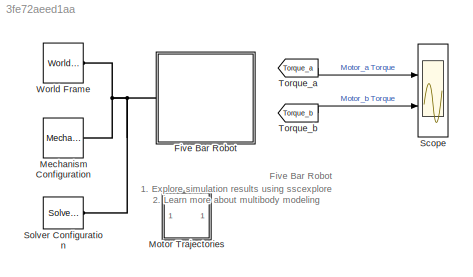
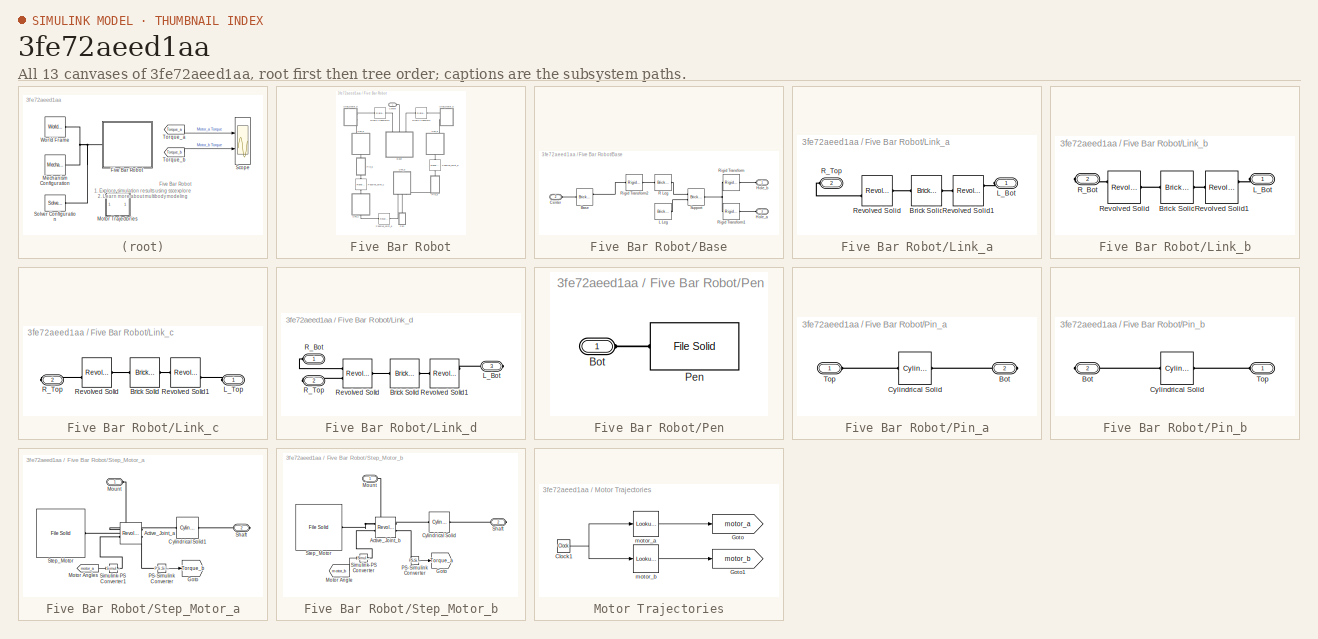
[diagram: thumbnail index - all 13 canvases of the model, root first then tree order]
MODEL slx_3fe72aeed1aa
KIND model
CONFIG AbsTol = 1e-3
CONFIG EnableMultiTasking = on
CONFIG FixedStep = auto
CONFIG MaxStep = auto
CONFIG MinStep = auto
CONFIG RelTol = 1e-3
CONFIG SampleTimeConstraint = Unconstrained
CONFIG SolverName = VariableStepAuto
CONFIG StartTime = 0.0
CONFIG StopTime = 2
WORKSPACE source: external: MATLAB File  (data not in archive)
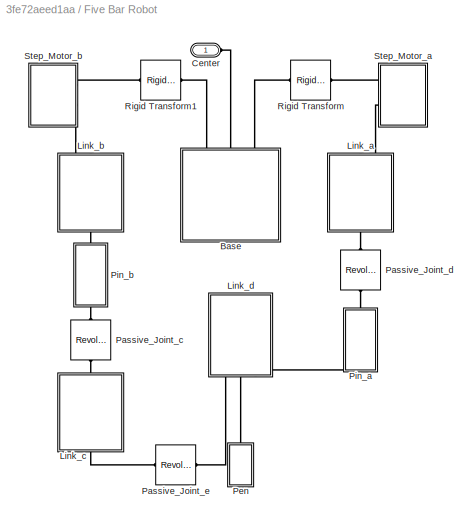
BLOCK [SubSystem] Five Bar Robot
  Ports = [0, 0, 0, 0, 0, 1]
  RequestExecContextInheritance = off
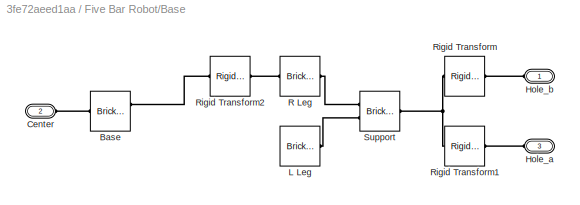
BLOCK [SubSystem] Five Bar Robot/Base
  NameLocation = right
  Ports = [0, 0, 0, 0, 0, 3]
  RequestExecContextInheritance = off
BLOCK [Reference] Five Bar Robot/Base/Base  REF=sm_lib/Body Elements/Brick Solid
  Ports = [0, 0, 0, 0, 0, 2, 1]
  SourceBlock = sm_lib/Body Elements/Brick Solid
  SourceProductBaseCode = MS
  SourceType = Brick Solid
BLOCK [PMIOPort] Five Bar Robot/Base/Center
  Port = 2
  Side = Left
BLOCK [PMIOPort] Five Bar Robot/Base/Hole_a
  Port = 3
  Side = Left
BLOCK [PMIOPort] Five Bar Robot/Base/Hole_b
  Side = Left
BLOCK [Reference] Five Bar Robot/Base/L Leg  REF=sm_lib/Body Elements/Brick Solid
  Ports = [0, 0, 0, 0, 0, 1, 1]
  SourceBlock = sm_lib/Body Elements/Brick Solid
  SourceProductBaseCode = MS
  SourceType = Brick Solid
BLOCK [Reference] Five Bar Robot/Base/R Leg  REF=sm_lib/Body Elements/Brick Solid
  Ports = [0, 0, 0, 0, 0, 1, 1]
  SourceBlock = sm_lib/Body Elements/Brick Solid
  SourceProductBaseCode = MS
  SourceType = Brick Solid
BLOCK [Reference] Five Bar Robot/Base/Rigid Transform  REF=sm_lib/Frames and
Transforms/Rigid
Transform
  Ports = [0, 0, 0, 0, 0, 1, 1]
  SourceBlock = sm_lib/Frames and\nTransforms/Rigid\nTransform
  SourceProductBaseCode = MS
  SourceType = Rigid\nTransform
BLOCK [Reference] Five Bar Robot/Base/Rigid Transform1  REF=sm_lib/Frames and
Transforms/Rigid
Transform
  Ports = [0, 0, 0, 0, 0, 1, 1]
  SourceBlock = sm_lib/Frames and\nTransforms/Rigid\nTransform
  SourceProductBaseCode = MS
  SourceType = Rigid\nTransform
BLOCK [Reference] Five Bar Robot/Base/Rigid Transform2  REF=sm_lib/Frames and
Transforms/Rigid
Transform
  Ports = [0, 0, 0, 0, 0, 1, 1]
  SourceBlock = sm_lib/Frames and\nTransforms/Rigid\nTransform
  SourceProductBaseCode = MS
  SourceType = Rigid\nTransform
BLOCK [Reference] Five Bar Robot/Base/Support  REF=sm_lib/Body Elements/Brick Solid
  Ports = [0, 0, 0, 0, 0, 2, 1]
  SourceBlock = sm_lib/Body Elements/Brick Solid
  SourceProductBaseCode = MS
  SourceType = Brick Solid
BLOCK [PMIOPort] Five Bar Robot/Center
  Side = Left
BLOCK [SubSystem] Five Bar Robot/Link_a
  NameLocation = right
  Ports = [0, 0, 0, 0, 0, 1, 1]
  RequestExecContextInheritance = off
BLOCK [Reference] Five Bar Robot/Link_a/Brick Solid  REF=sm_lib/Body Elements/Brick Solid
  Ports = [0, 0, 0, 0, 0, 1, 1]
  SourceBlock = sm_lib/Body Elements/Brick Solid
  SourceProductBaseCode = MS
  SourceType = Brick Solid
BLOCK [PMIOPort] Five Bar Robot/Link_a/L_Bot
  Side = Left
BLOCK [PMIOPort] Five Bar Robot/Link_a/R_Top
  Port = 2
  Side = Right
BLOCK [Reference] Five Bar Robot/Link_a/Revolved Solid  REF=sm_lib/Body Elements/Revolved Solid
  Ports = [0, 0, 0, 0, 0, 2, 1]
  SourceBlock = sm_lib/Body Elements/Revolved Solid
  SourceProductBaseCode = MS
  SourceType = Revolved Solid
BLOCK [Reference] Five Bar Robot/Link_a/Revolved Solid1  REF=sm_lib/Body Elements/Revolved Solid
  Ports = [0, 0, 0, 0, 0, 2, 1]
  SourceBlock = sm_lib/Body Elements/Revolved Solid
  SourceProductBaseCode = MS
  SourceType = Revolved Solid
BLOCK [SubSystem] Five Bar Robot/Link_b
  NameLocation = right
  Ports = [0, 0, 0, 0, 0, 1, 1]
  RequestExecContextInheritance = off
BLOCK [Reference] Five Bar Robot/Link_b/Brick Solid  REF=sm_lib/Body Elements/Brick Solid
  Ports = [0, 0, 0, 0, 0, 1, 1]
  SourceBlock = sm_lib/Body Elements/Brick Solid
  SourceProductBaseCode = MS
  SourceType = Brick Solid
BLOCK [PMIOPort] Five Bar Robot/Link_b/L_Bot
  Side = Left
BLOCK [PMIOPort] Five Bar Robot/Link_b/R_Bot
  Port = 2
  Side = Right
BLOCK [Reference] Five Bar Robot/Link_b/Revolved Solid  REF=sm_lib/Body Elements/Revolved Solid
  Ports = [0, 0, 0, 0, 0, 2, 1]
  SourceBlock = sm_lib/Body Elements/Revolved Solid
  SourceProductBaseCode = MS
  SourceType = Revolved Solid
BLOCK [Reference] Five Bar Robot/Link_b/Revolved Solid1  REF=sm_lib/Body Elements/Revolved Solid
  Ports = [0, 0, 0, 0, 0, 2, 1]
  SourceBlock = sm_lib/Body Elements/Revolved Solid
  SourceProductBaseCode = MS
  SourceType = Revolved Solid
BLOCK [SubSystem] Five Bar Robot/Link_c
  NameLocation = right
  Ports = [0, 0, 0, 0, 0, 1, 1]
  RequestExecContextInheritance = off
BLOCK [Reference] Five Bar Robot/Link_c/Brick Solid  REF=sm_lib/Body Elements/Brick Solid
  Ports = [0, 0, 0, 0, 0, 1, 1]
  SourceBlock = sm_lib/Body Elements/Brick Solid
  SourceProductBaseCode = MS
  SourceType = Brick Solid
BLOCK [PMIOPort] Five Bar Robot/Link_c/L_Top
  Side = Left
BLOCK [PMIOPort] Five Bar Robot/Link_c/R_Top
  Port = 2
  Side = Right
BLOCK [Reference] Five Bar Robot/Link_c/Revolved Solid  REF=sm_lib/Body Elements/Revolved Solid
  Ports = [0, 0, 0, 0, 0, 2, 1]
  SourceBlock = sm_lib/Body Elements/Revolved Solid
  SourceProductBaseCode = MS
  SourceType = Revolved Solid
BLOCK [Reference] Five Bar Robot/Link_c/Revolved Solid1  REF=sm_lib/Body Elements/Revolved Solid
  Ports = [0, 0, 0, 0, 0, 2, 1]
  SourceBlock = sm_lib/Body Elements/Revolved Solid
  SourceProductBaseCode = MS
  SourceType = Revolved Solid
BLOCK [SubSystem] Five Bar Robot/Link_d
  NameLocation = right
  Ports = [0, 0, 0, 0, 0, 0, 3]
  RequestExecContextInheritance = off
BLOCK [Reference] Five Bar Robot/Link_d/Brick Solid  REF=sm_lib/Body Elements/Brick Solid
  Ports = [0, 0, 0, 0, 0, 1, 1]
  SourceBlock = sm_lib/Body Elements/Brick Solid
  SourceProductBaseCode = MS
  SourceType = Brick Solid
BLOCK [PMIOPort] Five Bar Robot/Link_d/L_Bot
  Port = 3
  Side = Right
BLOCK [PMIOPort] Five Bar Robot/Link_d/R_Bot
  Side = Right
BLOCK [PMIOPort] Five Bar Robot/Link_d/R_Top
  Port = 2
  Side = Right
BLOCK [Reference] Five Bar Robot/Link_d/Revolved Solid  REF=sm_lib/Body Elements/Revolved Solid
  Ports = [0, 0, 0, 0, 0, 2, 1]
  SourceBlock = sm_lib/Body Elements/Revolved Solid
  SourceProductBaseCode = MS
  SourceType = Revolved Solid
BLOCK [Reference] Five Bar Robot/Link_d/Revolved Solid1  REF=sm_lib/Body Elements/Revolved Solid
  Ports = [0, 0, 0, 0, 0, 2, 1]
  SourceBlock = sm_lib/Body Elements/Revolved Solid
  SourceProductBaseCode = MS
  SourceType = Revolved Solid
BLOCK [Reference] Five Bar Robot/Passive_Joint_c  REF=sm_lib/Joints/Revolute Joint
  NameLocation = right
  Ports = [0, 0, 0, 0, 0, 1, 1]
  SourceBlock = sm_lib/Joints/Revolute Joint
  SourceProductBaseCode = MS
  SourceType = Revolute Joint
BLOCK [Reference] Five Bar Robot/Passive_Joint_d  REF=sm_lib/Joints/Revolute Joint
  NameLocation = right
  Ports = [0, 0, 0, 0, 0, 1, 1]
  SourceBlock = sm_lib/Joints/Revolute Joint
  SourceProductBaseCode = MS
  SourceType = Revolute Joint
BLOCK [Reference] Five Bar Robot/Passive_Joint_e  REF=sm_lib/Joints/Revolute Joint
  Ports = [0, 0, 0, 0, 0, 1, 1]
  SourceBlock = sm_lib/Joints/Revolute Joint
  SourceProductBaseCode = MS
  SourceType = Revolute Joint
BLOCK [SubSystem] Five Bar Robot/Pen
  Ports = [0, 0, 0, 0, 0, 1]
  RequestExecContextInheritance = off
BLOCK [PMIOPort] Five Bar Robot/Pen/Bot
  Side = Left
BLOCK [Reference] Five Bar Robot/Pen/Pen  REF=sm_lib/Body Elements/File Solid
  Ports = [0, 0, 0, 0, 0, 1, 1]
  SourceBlock = sm_lib/Body Elements/File Solid
  SourceProductBaseCode = MS
  SourceType = File Solid
BLOCK [SubSystem] Five Bar Robot/Pin_a
  NameLocation = right
  Ports = [0, 0, 0, 0, 0, 1, 1]
  RequestExecContextInheritance = off
BLOCK [PMIOPort] Five Bar Robot/Pin_a/Bot
  NameLocation = top
  Port = 2
  Side = Right
BLOCK [Reference] Five Bar Robot/Pin_a/Cylindrical Solid  REF=sm_lib/Body Elements/Cylindrical Solid
  Ports = [0, 0, 0, 0, 0, 1, 1]
  SourceBlock = sm_lib/Body Elements/Cylindrical Solid
  SourceProductBaseCode = MS
  SourceType = Cylindrical Solid
BLOCK [PMIOPort] Five Bar Robot/Pin_a/Top
  NameLocation = top
  Side = Left
BLOCK [SubSystem] Five Bar Robot/Pin_b
  NameLocation = right
  Ports = [0, 0, 0, 0, 0, 1, 1]
  RequestExecContextInheritance = off
BLOCK [PMIOPort] Five Bar Robot/Pin_b/Bot
  NameLocation = top
  Port = 2
  Side = Right
BLOCK [Reference] Five Bar Robot/Pin_b/Cylindrical Solid  REF=sm_lib/Body Elements/Cylindrical Solid
  Ports = [0, 0, 0, 0, 0, 1, 1]
  SourceBlock = sm_lib/Body Elements/Cylindrical Solid
  SourceProductBaseCode = MS
  SourceType = Cylindrical Solid
BLOCK [PMIOPort] Five Bar Robot/Pin_b/Top
  NameLocation = top
  Side = Left
BLOCK [Reference] Five Bar Robot/Rigid Transform  REF=sm_lib/Frames and
Transforms/Rigid
Transform
  Ports = [0, 0, 0, 0, 0, 1, 1]
  SourceBlock = sm_lib/Frames and\nTransforms/Rigid\nTransform
  SourceProductBaseCode = MS
  SourceType = Rigid\nTransform
BLOCK [Reference] Five Bar Robot/Rigid Transform1  REF=sm_lib/Frames and
Transforms/Rigid
Transform
  Ports = [0, 0, 0, 0, 0, 1, 1]
  SourceBlock = sm_lib/Frames and\nTransforms/Rigid\nTransform
  SourceProductBaseCode = MS
  SourceType = Rigid\nTransform
BLOCK [SubSystem] Five Bar Robot/Step_Motor_a
  Ports = [0, 0, 0, 0, 0, 0, 2]
  RequestExecContextInheritance = off
BLOCK [Reference] Five Bar Robot/Step_Motor_a/Active_Joint_a  REF=sm_lib/Joints/Revolute Joint
  Ports = [0, 0, 0, 0, 0, 2, 2]
  SourceBlock = sm_lib/Joints/Revolute Joint
  SourceProductBaseCode = MS
  SourceType = Revolute Joint
BLOCK [Reference] Five Bar Robot/Step_Motor_a/Cylindrical Solid1  REF=sm_lib/Body Elements/Cylindrical Solid
  Ports = [0, 0, 0, 0, 0, 1, 1]
  SourceBlock = sm_lib/Body Elements/Cylindrical Solid
  SourceProductBaseCode = MS
  SourceType = Cylindrical Solid
BLOCK [Goto] Five Bar Robot/Step_Motor_a/Goto
  GotoTag = Torque_b
  TagVisibility = global
BLOCK [From] Five Bar Robot/Step_Motor_a/Motor Angles
  GotoTag = motor_a
  TagVisibility = global
BLOCK [PMIOPort] Five Bar Robot/Step_Motor_a/Mount
  Side = Right
BLOCK [Reference] Five Bar Robot/Step_Motor_a/PS-Simulink Converter  REF=nesl_utility/PS-Simulink
Converter
  Ports = [0, 1, 0, 0, 0, 1]
  SourceBlock = nesl_utility/PS-Simulink\nConverter
  SourceProductBaseCode = PW,SS
  SourceType = PS-Simulink\nConverter
BLOCK [PMIOPort] Five Bar Robot/Step_Motor_a/Shaft
  Port = 2
  Side = Right
BLOCK [Reference] Five Bar Robot/Step_Motor_a/Simulink-PS Converter1  REF=nesl_utility/Simulink-PS
Converter
  Ports = [1, 0, 0, 0, 0, 0, 1]
  SourceBlock = nesl_utility/Simulink-PS\nConverter
  SourceProductBaseCode = PW,SS
  SourceType = Simulink-PS\nConverter
BLOCK [Reference] Five Bar Robot/Step_Motor_a/Step_Motor  REF=sm_lib/Body Elements/File Solid
  Ports = [0, 0, 0, 0, 0, 1, 1]
  SourceBlock = sm_lib/Body Elements/File Solid
  SourceProductBaseCode = MS
  SourceType = File Solid
BLOCK [SubSystem] Five Bar Robot/Step_Motor_b
  Ports = [0, 0, 0, 0, 0, 0, 2]
  RequestExecContextInheritance = off
BLOCK [Reference] Five Bar Robot/Step_Motor_b/Active_Joint_b  REF=sm_lib/Joints/Revolute Joint
  Ports = [0, 0, 0, 0, 0, 2, 2]
  SourceBlock = sm_lib/Joints/Revolute Joint
  SourceProductBaseCode = MS
  SourceType = Revolute Joint
BLOCK [Reference] Five Bar Robot/Step_Motor_b/Cylindrical Solid  REF=sm_lib/Body Elements/Cylindrical Solid
  Ports = [0, 0, 0, 0, 0, 1, 1]
  SourceBlock = sm_lib/Body Elements/Cylindrical Solid
  SourceProductBaseCode = MS
  SourceType = Cylindrical Solid
BLOCK [Goto] Five Bar Robot/Step_Motor_b/Goto
  GotoTag = Torque_a
  TagVisibility = global
BLOCK [From] Five Bar Robot/Step_Motor_b/Motor Angle
  GotoTag = motor_b
  TagVisibility = global
BLOCK [PMIOPort] Five Bar Robot/Step_Motor_b/Mount
  Side = Right
BLOCK [Reference] Five Bar Robot/Step_Motor_b/PS-Simulink Converter  REF=nesl_utility/PS-Simulink
Converter
  Ports = [0, 1, 0, 0, 0, 1]
  SourceBlock = nesl_utility/PS-Simulink\nConverter
  SourceProductBaseCode = PW,SS
  SourceType = PS-Simulink\nConverter
BLOCK [PMIOPort] Five Bar Robot/Step_Motor_b/Shaft
  Port = 2
  Side = Right
BLOCK [Reference] Five Bar Robot/Step_Motor_b/Simulink-PS Converter  REF=nesl_utility/Simulink-PS
Converter
  Ports = [1, 0, 0, 0, 0, 0, 1]
  SourceBlock = nesl_utility/Simulink-PS\nConverter
  SourceProductBaseCode = PW,SS
  SourceType = Simulink-PS\nConverter
BLOCK [Reference] Five Bar Robot/Step_Motor_b/Step_Motor  REF=sm_lib/Body Elements/File Solid
  Ports = [0, 0, 0, 0, 0, 1, 1]
  SourceBlock = sm_lib/Body Elements/File Solid
  SourceProductBaseCode = MS
  SourceType = File Solid
BLOCK [Reference] Mechanism Configuration  REF=sm_lib/Utilities/Mechanism
Configuration
  Ports = [0, 0, 0, 0, 0, 0, 1]
  SourceBlock = sm_lib/Utilities/Mechanism\nConfiguration
  SourceProductBaseCode = MS
  SourceType = Mechanism\nConfiguration
BLOCK [SubSystem] Motor Trajectories
  Ports = []
  RequestExecContextInheritance = off
BLOCK [Clock] Motor Trajectories/Clock1
BLOCK [Goto] Motor Trajectories/Goto
  GotoTag = motor_a
  TagVisibility = global
BLOCK [Goto] Motor Trajectories/Goto1
  GotoTag = motor_b
  TagVisibility = global
BLOCK [Lookup_n-D] Motor Trajectories/motor_a
  BreakpointsForDimension1 = smiData.Motion.trajectory(:,1)
  InputPortMap = u0
  InternalRulePriority = Speed
  InterpMethod = Cubic spline
  NumberOfTableDimensions = 1
  Ports = [1, 1]
  RndMeth = Simplest
  Table = smiData.Motion.trajectory(:,2)
BLOCK [Lookup_n-D] Motor Trajectories/motor_b
  BreakpointsForDimension1 = smiData.Motion.trajectory(:,1)
  InputPortMap = u0
  InternalRulePriority = Speed
  InterpMethod = Cubic spline
  NumberOfTableDimensions = 1
  Ports = [1, 1]
  RndMeth = Simplest
  Table = smiData.Motion.trajectory(:,3)
BLOCK [Scope] Scope
  Floating = off
  NumInputPorts = 2
  Ports = [2]
  ScopeSpecificationString = Simulink.scopes.TimeScopeBlockCfg('CurrentConfiguration', extmgr.ConfigurationSet(extmgr.Configuration('Core','General UI',true),extmgr.Configuration('Core','Source UI',true),extmgr.Configuration('Sources','WiredSimulink',true),extmgr.Configuration('Visuals','Time Domain',true,'SerializedDisplays',{struct('MinYLimReal','-52.92952','MaxYLimReal','429.76013','YLabelReal','Torque (Nm)','MinYLimMag','...<+1458ch>
BLOCK [Reference] Solver Configuration  REF=nesl_utility/Solver
Configuration
  Ports = [0, 0, 0, 0, 0, 0, 1]
  SourceBlock = nesl_utility/Solver\nConfiguration
  SourceProductBaseCode = PW,SS
  SourceType = Solver\nConfiguration
BLOCK [From] Torque_a
  GotoTag = Torque_a
  IconDisplay = Tag and signal name
  TagVisibility = global
BLOCK [From] Torque_b
  GotoTag = Torque_b
  TagVisibility = global
BLOCK [Reference] World Frame  REF=sm_lib/Frames and
Transforms/World Frame
  Ports = [0, 0, 0, 0, 0, 0, 1]
  SourceBlock = sm_lib/Frames and\nTransforms/World Frame
  SourceProductBaseCode = MS
  SourceType = World Frame
ANNOTATION (root): Five Bar Robot
ANNOTATION (root): 1. Explore simulation results using sscexplore 2. Learn more about multibody modeling
LINE Five Bar Robot/Step_Motor_a/Motor Angles:1 -> Five Bar Robot/Step_Motor_a/Simulink-PS Converter1:1
LINE Five Bar Robot/Step_Motor_a/PS-Simulink Converter:1 -> Five Bar Robot/Step_Motor_a/Goto:1
LINE Five Bar Robot/Step_Motor_b/Motor Angle:1 -> Five Bar Robot/Step_Motor_b/Simulink-PS Converter:1
LINE Five Bar Robot/Step_Motor_b/PS-Simulink Converter:1 -> Five Bar Robot/Step_Motor_b/Goto:1
NET Motor Trajectories/Clock1:1 -> Motor Trajectories/motor_a:1, Motor Trajectories/motor_b:1
LINE Motor Trajectories/motor_a:1 -> Motor Trajectories/Goto:1
LINE Motor Trajectories/motor_b:1 -> Motor Trajectories/Goto1:1
LINE Torque_a:1 -> Scope:1
LINE Torque_b:1 -> Scope:2
PLINE Five Bar Robot/Base/Base:LConn1 -- Five Bar Robot/Base/Rigid Transform2:LConn1
PLINE Five Bar Robot/Base/Base:RConn1 -- Five Bar Robot/Base/Center:RConn1
PLINE Five Bar Robot/Base/Hole_a:RConn1 -- Five Bar Robot/Base/Rigid Transform1:RConn1
PLINE Five Bar Robot/Base/Hole_b:RConn1 -- Five Bar Robot/Base/Rigid Transform:RConn1
PLINE Five Bar Robot/Base/L Leg:RConn1 -- Five Bar Robot/Base/Support:LConn2
PLINE Five Bar Robot/Base/R Leg:LConn1 -- Five Bar Robot/Base/Rigid Transform2:RConn1
PLINE Five Bar Robot/Base/R Leg:RConn1 -- Five Bar Robot/Base/Support:LConn1
PNET net1: Five Bar Robot/Base/Rigid Transform1:LConn1 -- Five Bar Robot/Base/Rigid Transform:LConn1 -- Five Bar Robot/Base/Support:RConn1
PLINE Five Bar Robot/Base:LConn1 -- Five Bar Robot/Rigid Transform1:LConn1
PLINE Five Bar Robot/Base:LConn2 -- Five Bar Robot/Center:RConn1
PLINE Five Bar Robot/Base:LConn3 -- Five Bar Robot/Rigid Transform:LConn1
PLINE Five Bar Robot/Link_a/Brick Solid:LConn1 -- Five Bar Robot/Link_a/Revolved Solid1:RConn1
PLINE Five Bar Robot/Link_a/Brick Solid:RConn1 -- Five Bar Robot/Link_a/Revolved Solid:RConn1
PLINE Five Bar Robot/Link_a/L_Bot:RConn1 -- Five Bar Robot/Link_a/Revolved Solid1:LConn1
PLINE Five Bar Robot/Link_a/R_Top:RConn1 -- Five Bar Robot/Link_a/Revolved Solid:LConn2
PLINE Five Bar Robot/Link_a:LConn1 -- Five Bar Robot/Step_Motor_a:RConn2
PLINE Five Bar Robot/Link_a:RConn1 -- Five Bar Robot/Passive_Joint_d:LConn1
PLINE Five Bar Robot/Link_b/Brick Solid:LConn1 -- Five Bar Robot/Link_b/Revolved Solid1:RConn1
PLINE Five Bar Robot/Link_b/Brick Solid:RConn1 -- Five Bar Robot/Link_b/Revolved Solid:RConn1
PLINE Five Bar Robot/Link_b/L_Bot:RConn1 -- Five Bar Robot/Link_b/Revolved Solid1:LConn1
PLINE Five Bar Robot/Link_b/R_Bot:RConn1 -- Five Bar Robot/Link_b/Revolved Solid:LConn1
PLINE Five Bar Robot/Link_b:LConn1 -- Five Bar Robot/Step_Motor_b:RConn2
PLINE Five Bar Robot/Link_b:RConn1 -- Five Bar Robot/Pin_b:RConn1
PLINE Five Bar Robot/Link_c/Brick Solid:LConn1 -- Five Bar Robot/Link_c/Revolved Solid1:RConn1
PLINE Five Bar Robot/Link_c/Brick Solid:RConn1 -- Five Bar Robot/Link_c/Revolved Solid:RConn1
PLINE Five Bar Robot/Link_c/L_Top:RConn1 -- Five Bar Robot/Link_c/Revolved Solid1:LConn2
PLINE Five Bar Robot/Link_c/R_Top:RConn1 -- Five Bar Robot/Link_c/Revolved Solid:LConn2
PLINE Five Bar Robot/Link_c:LConn1 -- Five Bar Robot/Passive_Joint_c:RConn1
PLINE Five Bar Robot/Link_c:RConn1 -- Five Bar Robot/Passive_Joint_e:LConn1
PLINE Five Bar Robot/Link_d/Brick Solid:LConn1 -- Five Bar Robot/Link_d/Revolved Solid1:RConn1
PLINE Five Bar Robot/Link_d/Brick Solid:RConn1 -- Five Bar Robot/Link_d/Revolved Solid:RConn1
PLINE Five Bar Robot/Link_d/L_Bot:RConn1 -- Five Bar Robot/Link_d/Revolved Solid1:LConn1
PLINE Five Bar Robot/Link_d/R_Bot:RConn1 -- Five Bar Robot/Link_d/Revolved Solid:LConn1
PLINE Five Bar Robot/Link_d/R_Top:RConn1 -- Five Bar Robot/Link_d/Revolved Solid:LConn2
PLINE Five Bar Robot/Link_d:RConn1 -- Five Bar Robot/Passive_Joint_e:RConn1
PLINE Five Bar Robot/Link_d:RConn2 -- Five Bar Robot/Pen:LConn1
PLINE Five Bar Robot/Link_d:RConn3 -- Five Bar Robot/Pin_a:RConn1
PLINE Five Bar Robot/Passive_Joint_c:LConn1 -- Five Bar Robot/Pin_b:LConn1
PLINE Five Bar Robot/Passive_Joint_d:RConn1 -- Five Bar Robot/Pin_a:LConn1
PLINE Five Bar Robot/Pen/Bot:RConn1 -- Five Bar Robot/Pen/Pen:LConn1
PLINE Five Bar Robot/Pin_a/Bot:RConn1 -- Five Bar Robot/Pin_a/Cylindrical Solid:RConn1
PLINE Five Bar Robot/Pin_a/Cylindrical Solid:LConn1 -- Five Bar Robot/Pin_a/Top:RConn1
PLINE Five Bar Robot/Pin_b/Bot:RConn1 -- Five Bar Robot/Pin_b/Cylindrical Solid:RConn1
PLINE Five Bar Robot/Pin_b/Cylindrical Solid:LConn1 -- Five Bar Robot/Pin_b/Top:RConn1
PLINE Five Bar Robot/Rigid Transform1:RConn1 -- Five Bar Robot/Step_Motor_b:RConn1
PLINE Five Bar Robot/Rigid Transform:RConn1 -- Five Bar Robot/Step_Motor_a:RConn1
PNET net2: Five Bar Robot/Step_Motor_a/Active_Joint_a:LConn1 -- Five Bar Robot/Step_Motor_a/Mount:RConn1 -- Five Bar Robot/Step_Motor_a/Step_Motor:RConn1
PLINE Five Bar Robot/Step_Motor_a/Active_Joint_a:LConn2 -- Five Bar Robot/Step_Motor_a/Simulink-PS Converter1:RConn1
PLINE Five Bar Robot/Step_Motor_a/Active_Joint_a:RConn1 -- Five Bar Robot/Step_Motor_a/Cylindrical Solid1:LConn1
PLINE Five Bar Robot/Step_Motor_a/Active_Joint_a:RConn2 -- Five Bar Robot/Step_Motor_a/PS-Simulink Converter:LConn1
PLINE Five Bar Robot/Step_Motor_a/Cylindrical Solid1:RConn1 -- Five Bar Robot/Step_Motor_a/Shaft:RConn1
PNET net3: Five Bar Robot/Step_Motor_b/Active_Joint_b:LConn1 -- Five Bar Robot/Step_Motor_b/Mount:RConn1 -- Five Bar Robot/Step_Motor_b/Step_Motor:RConn1
PLINE Five Bar Robot/Step_Motor_b/Active_Joint_b:LConn2 -- Five Bar Robot/Step_Motor_b/Simulink-PS Converter:RConn1
PLINE Five Bar Robot/Step_Motor_b/Active_Joint_b:RConn1 -- Five Bar Robot/Step_Motor_b/Cylindrical Solid:LConn1
PLINE Five Bar Robot/Step_Motor_b/Active_Joint_b:RConn2 -- Five Bar Robot/Step_Motor_b/PS-Simulink Converter:LConn1
PLINE Five Bar Robot/Step_Motor_b/Cylindrical Solid:RConn1 -- Five Bar Robot/Step_Motor_b/Shaft:RConn1
PNET net4: Five Bar Robot:LConn1 -- Mechanism Configuration:RConn1 -- Solver Configuration:RConn1 -- World Frame:RConn1
note: NET lines group one-source signal fan-out (src -> all destinations, sorted); 1:1 wires keep LINE; PNET lines group multi-terminal physical nets as a canonical sorted terminal list (undirected conserving connections); 2-terminal nets keep the pairwise PLINE form
